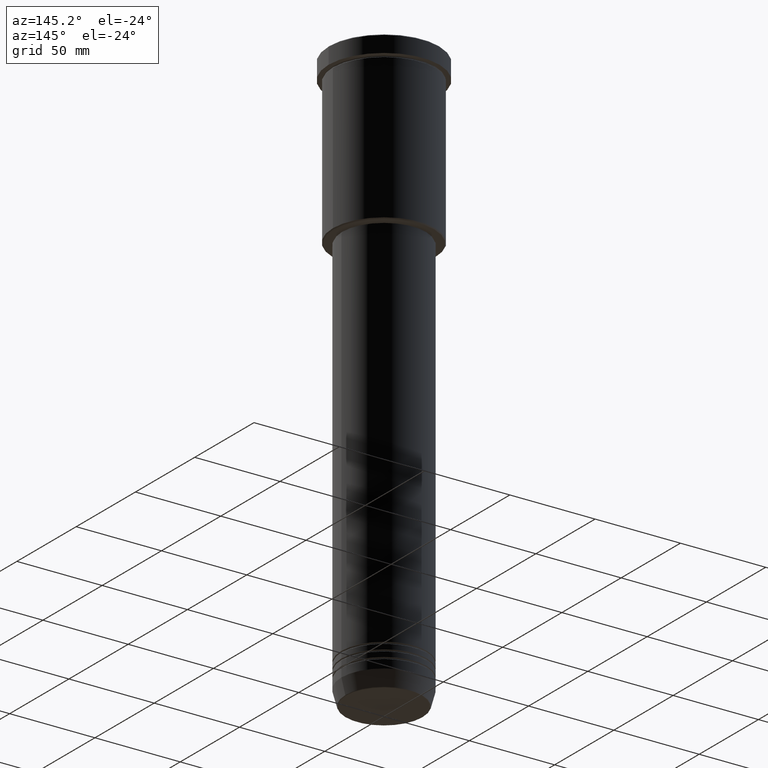
[diagram: clean part render]
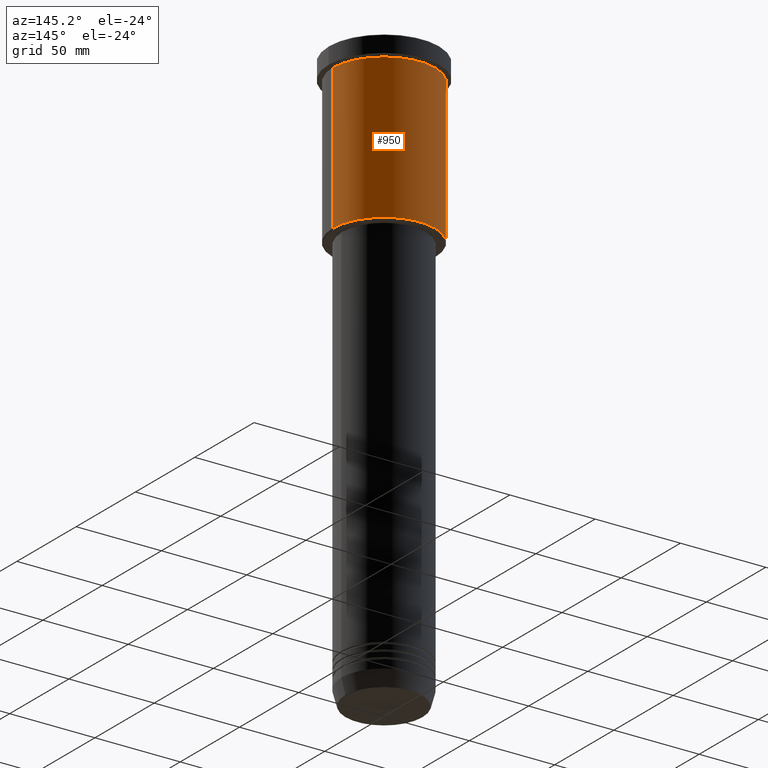
[diagram: same view with one face highlighted and labeled with its STEP entity id]
A machine part, auxiliary view. The second image highlights one B-rep face of the part: STEP entity #950.
In plain terms, the highlighted cylindrical surface (partial cylindrical patch) has radius 30 mm, axis along (-0, -0, 1).
Its self-contained STEP definition (entity closure, byte-faithful):
#11 = CARTESIAN_POINT ( 'NONE',  ( 30.00000000000000000, 0.000000000000000000, -10.99999999999999289 ) ) ;
#18 = CARTESIAN_POINT ( 'NONE',  ( -30.00000000000000000, 3.673940397442059178E-15, -95.49999999999995737 ) ) ;
#137 = CIRCLE ( 'NONE', #1148, 30.00000000000000000 ) ;
#140 = CARTESIAN_POINT ( 'NONE',  ( 30.00000000000000000, 0.000000000000000000, 0.000000000000000000 ) ) ;
#149 = VERTEX_POINT ( 'NONE', #869 ) ;
#173 = VERTEX_POINT ( 'NONE', #11 ) ;
#191 = VERTEX_POINT ( 'NONE', #18 ) ;
#324 = ORIENTED_EDGE ( 'NONE', *, *, #803, .T. ) ;
#329 = DIRECTION ( 'NONE',  ( 1.000000000000000000, 0.000000000000000000, 0.000000000000000000 ) ) ;
#334 = VERTEX_POINT ( 'NONE', #946 ) ;
#340 = CARTESIAN_POINT ( 'NONE',  ( -30.00000000000000000, 3.673940397442059178E-15, 0.000000000000000000 ) ) ;
#342 = EDGE_LOOP ( 'NONE', ( #324, #826, #779, #744 ) ) ;
#368 = DIRECTION ( 'NONE',  ( -1.000000000000000000, 0.000000000000000000, 0.000000000000000000 ) ) ;
#408 = DIRECTION ( 'NONE',  ( -0.000000000000000000, -0.000000000000000000, 1.000000000000000000 ) ) ;
#411 = LINE ( 'NONE', #140, #481 ) ;
#414 = CARTESIAN_POINT ( 'NONE',  ( 0.000000000000000000, 0.000000000000000000, 0.000000000000000000 ) ) ;
#415 = EDGE_CURVE ( 'NONE', #173, #334, #137, .T. ) ;
#481 = VECTOR ( 'NONE', #408, 1000.000000000000000 ) ;
#503 = CYLINDRICAL_SURFACE ( 'NONE', #994, 30.00000000000000000 ) ;
#509 = DIRECTION ( 'NONE',  ( 1.000000000000000000, 0.000000000000000000, 0.000000000000000000 ) ) ;
#512 = LINE ( 'NONE', #340, #1131 ) ;
#560 = CARTESIAN_POINT ( 'NONE',  ( 0.000000000000000000, 0.000000000000000000, -95.49999999999995737 ) ) ;
#673 = CARTESIAN_POINT ( 'NONE',  ( 0.000000000000000000, 0.000000000000000000, -10.99999999999999289 ) ) ;
#680 = DIRECTION ( 'NONE',  ( -0.000000000000000000, -0.000000000000000000, 1.000000000000000000 ) ) ;
#722 = CIRCLE ( 'NONE', #1092, 30.00000000000000000 ) ;
#744 = ORIENTED_EDGE ( 'NONE', *, *, #967, .F. ) ;
#772 = FACE_OUTER_BOUND ( 'NONE', #342, .T. ) ;
#779 = ORIENTED_EDGE ( 'NONE', *, *, #415, .F. ) ;
#803 = EDGE_CURVE ( 'NONE', #149, #191, #722, .T. ) ;
#826 = ORIENTED_EDGE ( 'NONE', *, *, #1034, .T. ) ;
#869 = CARTESIAN_POINT ( 'NONE',  ( 30.00000000000000000, 0.000000000000000000, -95.49999999999995737 ) ) ;
#946 = CARTESIAN_POINT ( 'NONE',  ( -30.00000000000000000, 3.673940397442059178E-15, -10.99999999999999289 ) ) ;
#950 = ADVANCED_FACE ( 'NONE', ( #772 ), #503, .T. ) ;
#955 = DIRECTION ( 'NONE',  ( -0.000000000000000000, -0.000000000000000000, 1.000000000000000000 ) ) ;
#967 = EDGE_CURVE ( 'NONE', #149, #173, #411, .T. ) ;
#994 = AXIS2_PLACEMENT_3D ( 'NONE', #414, #955, #329 ) ;
#1034 = EDGE_CURVE ( 'NONE', #191, #334, #512, .T. ) ;
#1063 = DIRECTION ( 'NONE',  ( -0.000000000000000000, -0.000000000000000000, 1.000000000000000000 ) ) ;
#1092 = AXIS2_PLACEMENT_3D ( 'NONE', #560, #1102, #368 ) ;
#1102 = DIRECTION ( 'NONE',  ( -0.000000000000000000, -0.000000000000000000, 1.000000000000000000 ) ) ;
#1131 = VECTOR ( 'NONE', #1063, 1000.000000000000000 ) ;
#1148 = AXIS2_PLACEMENT_3D ( 'NONE', #673, #680, #509 ) ;